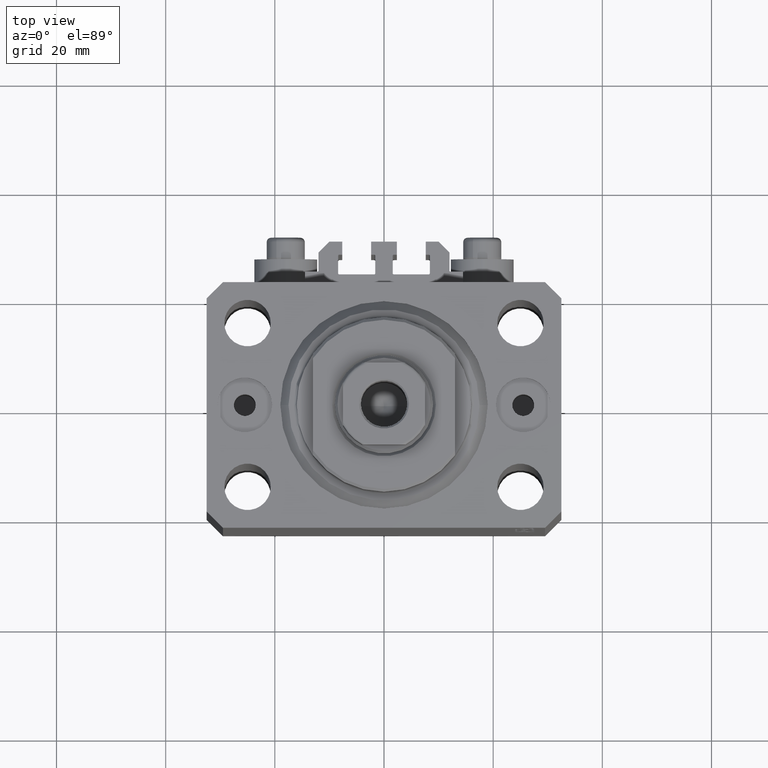
[diagram: clean part render]
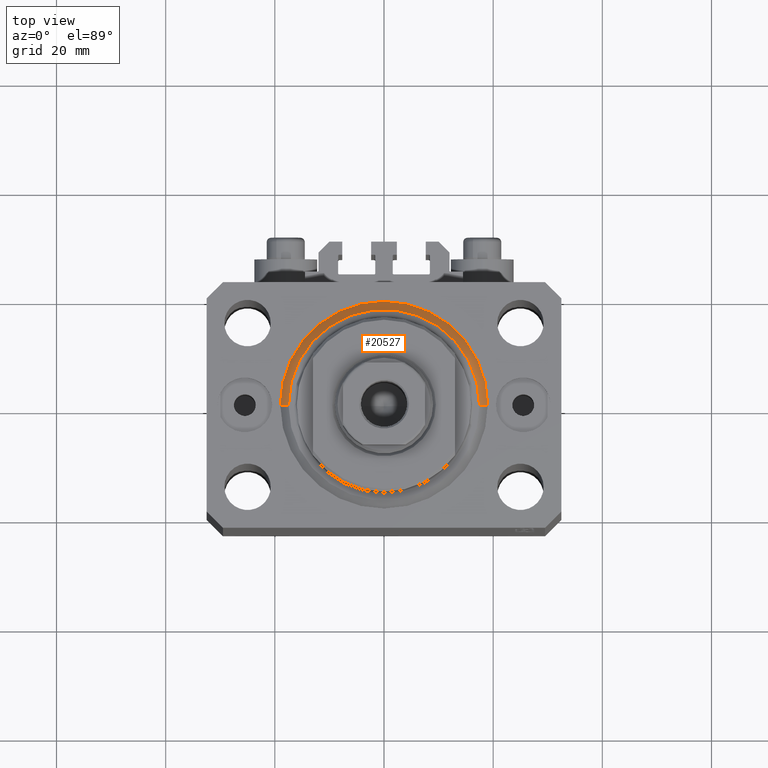
[diagram: same view with one face highlighted and labeled with its STEP entity id]
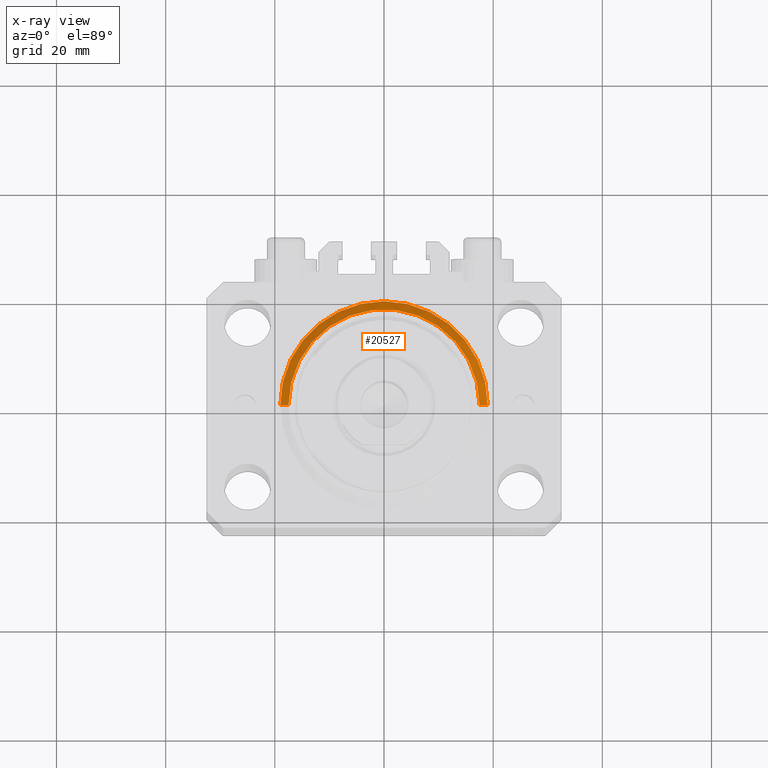
[diagram: x-ray of the same camera — body ghosted, the highlighted face saturated]
A machine part, top view. The second image highlights one B-rep face of the part: STEP entity #20527.
The next image is the same camera in x-ray: the body ghosted, the highlighted face saturated — about 0% of this face is hidden behind the body in this view.
In plain terms, the highlighted conical surface has half-angle 45 deg.
Its self-contained STEP definition (entity closure, byte-faithful):
#228 = EDGE_CURVE ( 'NONE', #10424, #30215, #22463, .T. ) ;
#1380 = EDGE_LOOP ( 'NONE', ( #3073, #4020, #5944, #34319 ) ) ;
#3073 = ORIENTED_EDGE ( 'NONE', *, *, #21343, .F. ) ;
#3134 = CARTESIAN_POINT ( 'NONE',  ( 19.00000000000000000, 2.326828918379970970E-15, 1.500000000000004885 ) ) ;
#4020 = ORIENTED_EDGE ( 'NONE', *, *, #43673, .T. ) ;
#5108 = DIRECTION ( 'NONE',  ( -0.000000000000000000, -0.000000000000000000, 1.000000000000000000 ) ) ;
#5825 = DIRECTION ( 'NONE',  ( 1.000000000000000000, 0.000000000000000000, 0.000000000000000000 ) ) ;
#5944 = ORIENTED_EDGE ( 'NONE', *, *, #228, .F. ) ;
#6584 = DIRECTION ( 'NONE',  ( 0.7071067811865483499, 0.000000000000000000, 0.7071067811865467956 ) ) ;
#8590 = VERTEX_POINT ( 'NONE', #40464 ) ;
#10424 = VERTEX_POINT ( 'NONE', #3134 ) ;
#13210 = CARTESIAN_POINT ( 'NONE',  ( -19.00000000000000000, 2.326828918379970970E-15, 1.500000000000004885 ) ) ;
#13821 = DIRECTION ( 'NONE',  ( 1.000000000000000000, 0.000000000000000000, 0.000000000000000000 ) ) ;
#17679 = AXIS2_PLACEMENT_3D ( 'NONE', #31984, #46544, #13821 ) ;
#17984 = EDGE_CURVE ( 'NONE', #35897, #10424, #39286, .T. ) ;
#18326 = AXIS2_PLACEMENT_3D ( 'NONE', #37793, #5108, #31106 ) ;
#19099 = CONICAL_SURFACE ( 'NONE', #18326, 19.00000000000000000, 0.7853981633974492782 ) ;
#20125 = CARTESIAN_POINT ( 'NONE',  ( -19.00000000000000000, 0.000000000000000000, 1.500000000000004885 ) ) ;
#20527 = ADVANCED_FACE ( 'NONE', ( #45898 ), #19099, .T. ) ;
#20605 = CARTESIAN_POINT ( 'NONE',  ( 0.000000000000000000, 0.000000000000000000, 1.500000000000004885 ) ) ;
#21343 = EDGE_CURVE ( 'NONE', #8590, #35897, #41315, .T. ) ;
#22463 = CIRCLE ( 'NONE', #35387, 19.00000000000000000 ) ;
#23256 = DIRECTION ( 'NONE',  ( -0.7071067811865483499, 8.659560562354943952E-17, 0.7071067811865467956 ) ) ;
#23730 = LINE ( 'NONE', #13210, #33146 ) ;
#26658 = VECTOR ( 'NONE', #6584, 1000.000000000000000 ) ;
#28020 = DIRECTION ( 'NONE',  ( -0.000000000000000000, -0.000000000000000000, 1.000000000000000000 ) ) ;
#30032 = CARTESIAN_POINT ( 'NONE',  ( 17.49999999999999289, 0.000000000000000000, 0.000000000000000000 ) ) ;
#30215 = VERTEX_POINT ( 'NONE', #20125 ) ;
#31106 = DIRECTION ( 'NONE',  ( 1.000000000000000000, 0.000000000000000000, 0.000000000000000000 ) ) ;
#31984 = CARTESIAN_POINT ( 'NONE',  ( 0.000000000000000000, 0.000000000000000000, 0.000000000000000000 ) ) ;
#33146 = VECTOR ( 'NONE', #23256, 1000.000000000000000 ) ;
#34319 = ORIENTED_EDGE ( 'NONE', *, *, #17984, .F. ) ;
#35387 = AXIS2_PLACEMENT_3D ( 'NONE', #20605, #28020, #5825 ) ;
#35703 = CARTESIAN_POINT ( 'NONE',  ( 19.00000000000000000, 0.000000000000000000, 1.500000000000004885 ) ) ;
#35897 = VERTEX_POINT ( 'NONE', #30032 ) ;
#37793 = CARTESIAN_POINT ( 'NONE',  ( 0.000000000000000000, 0.000000000000000000, 1.500000000000004885 ) ) ;
#39286 = LINE ( 'NONE', #35703, #26658 ) ;
#40464 = CARTESIAN_POINT ( 'NONE',  ( -17.49999999999999289, 2.234980408443919215E-15, 0.000000000000000000 ) ) ;
#41315 = CIRCLE ( 'NONE', #17679, 17.49999999999999289 ) ;
#43673 = EDGE_CURVE ( 'NONE', #8590, #30215, #23730, .T. ) ;
#45898 = FACE_OUTER_BOUND ( 'NONE', #1380, .T. ) ;
#46544 = DIRECTION ( 'NONE',  ( -0.000000000000000000, -0.000000000000000000, -1.000000000000000000 ) ) ;